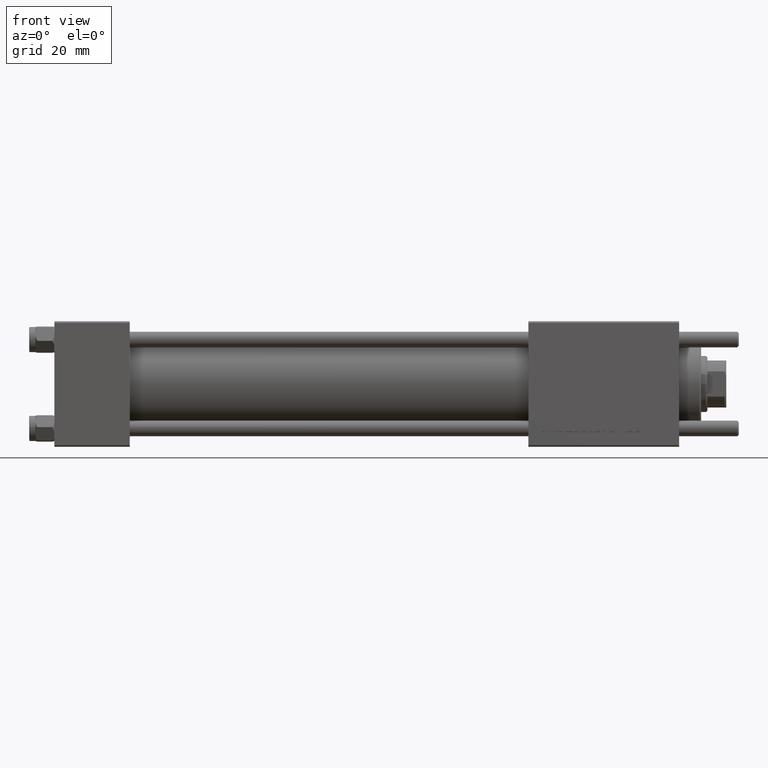
[diagram: clean part render]
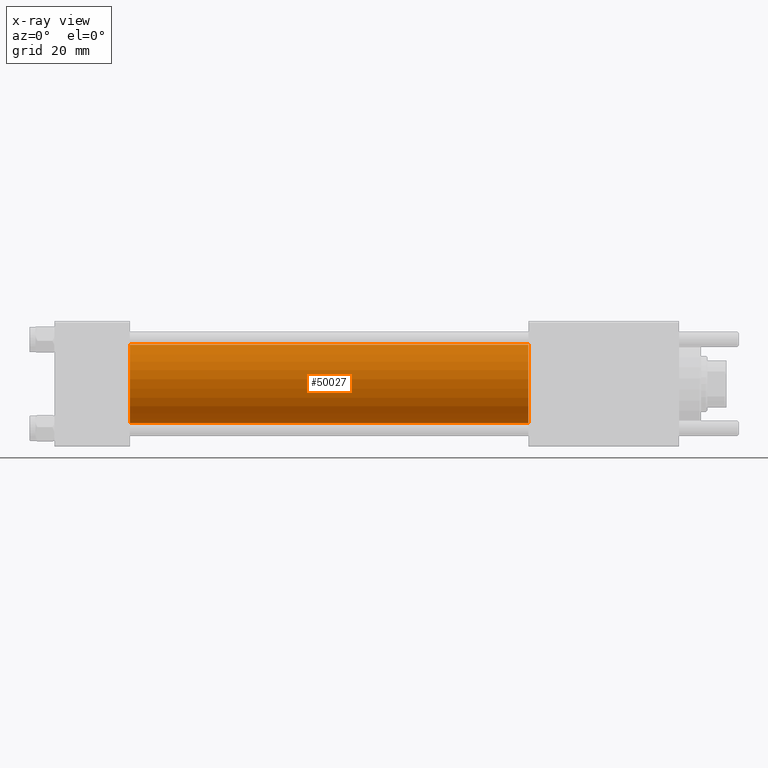
[diagram: x-ray — body ghosted, one internal face saturated and labeled with its STEP entity id]
A machine part, front view, then the same camera in x-ray: the body is ghosted and one INTERNAL B-rep face — a face not visible from any outside direction — is saturated and labeled: STEP entity #50027.
In plain terms, the highlighted cylindrical surface (partial cylindrical patch) has radius 12.5 mm, axis along (-1, -0, -0).
Its self-contained STEP definition (entity closure, byte-faithful):
#484 = AXIS2_PLACEMENT_3D ( 'NONE', #37157, #46319, #6808 ) ;
#4036 = CARTESIAN_POINT ( 'NONE',  ( 151.0000000000000000, -1.071276715031019515E-15, -12.49999999999999645 ) ) ;
#4161 = DIRECTION ( 'NONE',  ( -1.000000000000000000, -0.000000000000000000, -0.000000000000000000 ) ) ;
#4289 = EDGE_CURVE ( 'NONE', #33314, #10845, #9483, .T. ) ;
#5012 = EDGE_LOOP ( 'NONE', ( #32039, #11006, #42834, #25983 ) ) ;
#5868 = VECTOR ( 'NONE', #29521, 1000.000000000000000 ) ;
#6808 = DIRECTION ( 'NONE',  ( 0.000000000000000000, 0.000000000000000000, 1.000000000000000000 ) ) ;
#6966 = EDGE_CURVE ( 'NONE', #41911, #10845, #51603, .T. ) ;
#7091 = CYLINDRICAL_SURFACE ( 'NONE', #484, 12.49999999999999645 ) ;
#8735 = VECTOR ( 'NONE', #4161, 1000.000000000000000 ) ;
#9483 = CIRCLE ( 'NONE', #48809, 12.49999999999999645 ) ;
#10845 = VERTEX_POINT ( 'NONE', #19670 ) ;
#11006 = ORIENTED_EDGE ( 'NONE', *, *, #6966, .T. ) ;
#16276 = EDGE_CURVE ( 'NONE', #52076, #33314, #17088, .T. ) ;
#17088 = LINE ( 'NONE', #34526, #8735 ) ;
#18020 = CIRCLE ( 'NONE', #55498, 12.49999999999999645 ) ;
#19415 = FACE_OUTER_BOUND ( 'NONE', #5012, .T. ) ;
#19670 = CARTESIAN_POINT ( 'NONE',  ( 24.00000000000000000, -1.071276715031019515E-15, -12.49999999999999645 ) ) ;
#19856 = CARTESIAN_POINT ( 'NONE',  ( 24.00000000000000000, -2.602085213965210642E-15, 12.49999999999999645 ) ) ;
#25983 = ORIENTED_EDGE ( 'NONE', *, *, #16276, .F. ) ;
#26453 = DIRECTION ( 'NONE',  ( 0.000000000000000000, 0.000000000000000000, -1.000000000000000000 ) ) ;
#29521 = DIRECTION ( 'NONE',  ( -1.000000000000000000, -0.000000000000000000, -0.000000000000000000 ) ) ;
#32039 = ORIENTED_EDGE ( 'NONE', *, *, #54448, .T. ) ;
#32535 = CARTESIAN_POINT ( 'NONE',  ( 151.0000000000000000, -2.602085213965210642E-15, 12.49999999999999645 ) ) ;
#33213 = CARTESIAN_POINT ( 'NONE',  ( 151.0000000000000000, -1.071276715031019515E-15, -12.49999999999999645 ) ) ;
#33314 = VERTEX_POINT ( 'NONE', #19856 ) ;
#33486 = DIRECTION ( 'NONE',  ( 0.000000000000000000, 0.000000000000000000, -1.000000000000000000 ) ) ;
#34526 = CARTESIAN_POINT ( 'NONE',  ( 151.0000000000000000, -2.602085213965210642E-15, 12.49999999999999645 ) ) ;
#35903 = CARTESIAN_POINT ( 'NONE',  ( 151.0000000000000000, -2.602085213965210642E-15, 0.000000000000000000 ) ) ;
#37157 = CARTESIAN_POINT ( 'NONE',  ( 151.0000000000000000, -2.602085213965210642E-15, 0.000000000000000000 ) ) ;
#41911 = VERTEX_POINT ( 'NONE', #33213 ) ;
#42834 = ORIENTED_EDGE ( 'NONE', *, *, #4289, .F. ) ;
#43228 = CARTESIAN_POINT ( 'NONE',  ( 24.00000000000000000, -2.602085213965210642E-15, 0.000000000000000000 ) ) ;
#46319 = DIRECTION ( 'NONE',  ( -1.000000000000000000, -0.000000000000000000, -0.000000000000000000 ) ) ;
#48809 = AXIS2_PLACEMENT_3D ( 'NONE', #43228, #55845, #33486 ) ;
#50027 = ADVANCED_FACE ( 'NONE', ( #19415 ), #7091, .F. ) ;
#51603 = LINE ( 'NONE', #4036, #5868 ) ;
#52076 = VERTEX_POINT ( 'NONE', #32535 ) ;
#53403 = DIRECTION ( 'NONE',  ( 1.000000000000000000, 0.000000000000000000, 0.000000000000000000 ) ) ;
#54448 = EDGE_CURVE ( 'NONE', #52076, #41911, #18020, .T. ) ;
#55498 = AXIS2_PLACEMENT_3D ( 'NONE', #35903, #53403, #26453 ) ;
#55845 = DIRECTION ( 'NONE',  ( 1.000000000000000000, 0.000000000000000000, 0.000000000000000000 ) ) ;